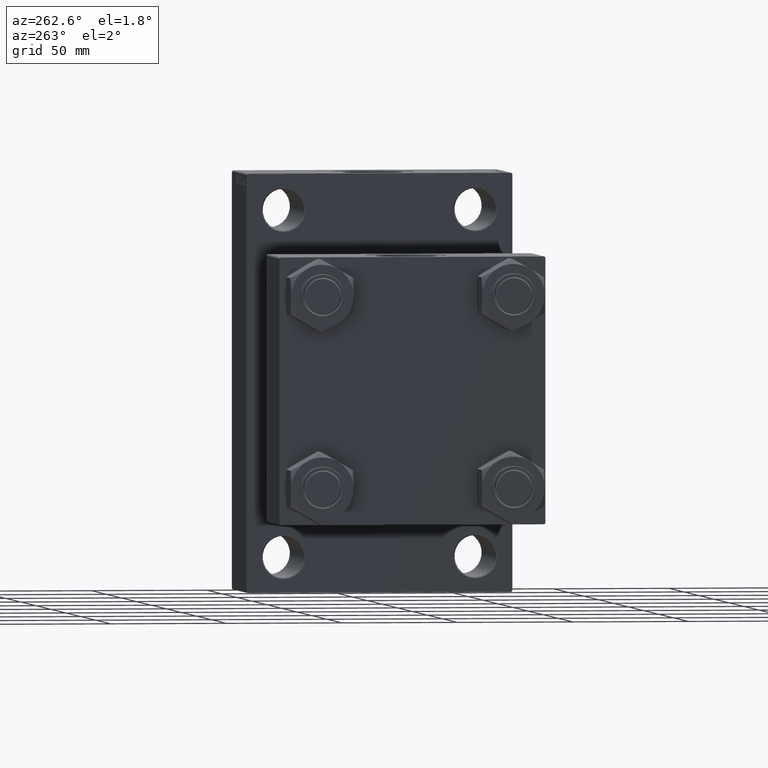
[diagram: clean part render]
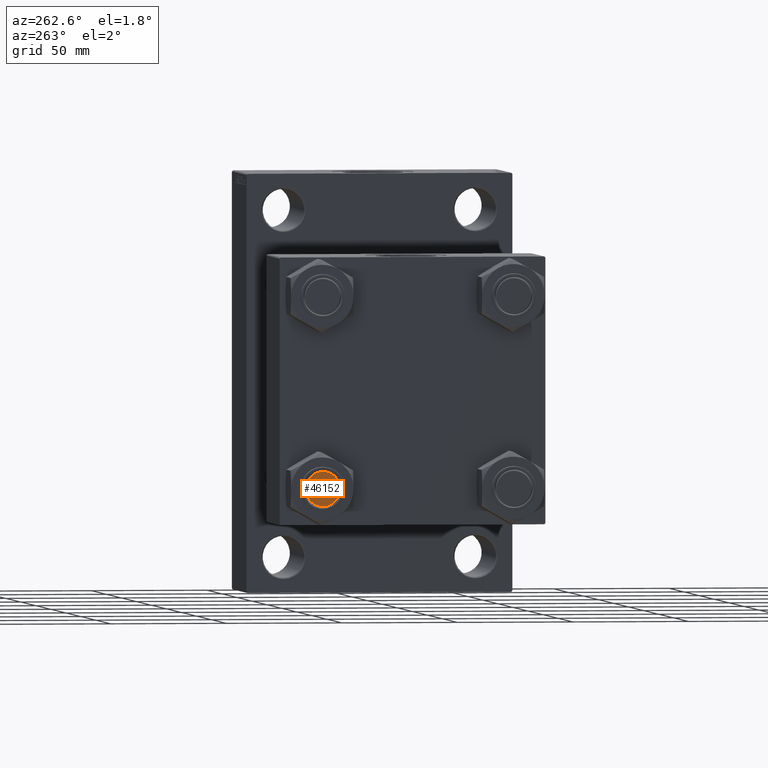
[diagram: same view with one face highlighted and labeled with its STEP entity id]
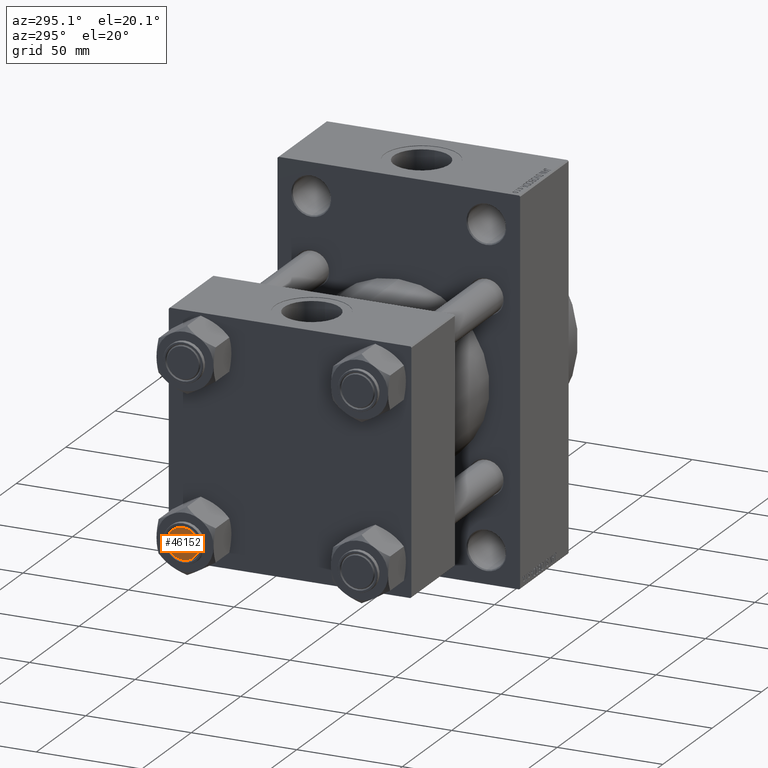
[diagram: same view with one face highlighted and labeled with its STEP entity id]
A machine part, auxiliary view. The second image highlights one B-rep face of the part: STEP entity #46152.
A second angle (auxiliary view) of the same face is appended — the face is thin or edge-on in the first view.
In plain terms, the highlighted planar face has unit normal (1, 0, 0).
Its self-contained STEP definition (entity closure, byte-faithful):
#528 = EDGE_CURVE ( 'NONE', #25853, #27355, #25229, .T. ) ;
#935 = ORIENTED_EDGE ( 'NONE', *, *, #528, .T. ) ;
#1458 = DIRECTION ( 'NONE',  ( 1.000000000000000000, 0.000000000000000000, 0.000000000000000000 ) ) ;
#7364 = DIRECTION ( 'NONE',  ( 1.000000000000000000, 0.000000000000000000, 0.000000000000000000 ) ) ;
#11456 = DIRECTION ( 'NONE',  ( -0.000000000000000000, -0.000000000000000000, -1.000000000000000000 ) ) ;
#12527 = ORIENTED_EDGE ( 'NONE', *, *, #21401, .T. ) ;
#12927 = CARTESIAN_POINT ( 'NONE',  ( 7.500000000000020428, 0.000000000000000000, 0.000000000000000000 ) ) ;
#14349 = CARTESIAN_POINT ( 'NONE',  ( 0.000000000000000000, 0.000000000000000000, 0.000000000000000000 ) ) ;
#16100 = DIRECTION ( 'NONE',  ( 1.000000000000000000, 0.000000000000000000, -0.000000000000000000 ) ) ;
#19518 = DIRECTION ( 'NONE',  ( -0.000000000000000000, -0.000000000000000000, -1.000000000000000000 ) ) ;
#19753 = CARTESIAN_POINT ( 'NONE',  ( 0.000000000000000000, 0.000000000000000000, 0.000000000000000000 ) ) ;
#21060 = AXIS2_PLACEMENT_3D ( 'NONE', #19753, #19518, #1458 ) ;
#21401 = EDGE_CURVE ( 'NONE', #27355, #25853, #44955, .T. ) ;
#23792 = FACE_OUTER_BOUND ( 'NONE', #23896, .T. ) ;
#23896 = EDGE_LOOP ( 'NONE', ( #12527, #935 ) ) ;
#25229 = CIRCLE ( 'NONE', #47534, 7.500000000000020428 ) ;
#25853 = VERTEX_POINT ( 'NONE', #39658 ) ;
#27355 = VERTEX_POINT ( 'NONE', #12927 ) ;
#27418 = DIRECTION ( 'NONE',  ( 0.000000000000000000, 0.000000000000000000, 1.000000000000000000 ) ) ;
#39576 = AXIS2_PLACEMENT_3D ( 'NONE', #44798, #27418, #16100 ) ;
#39658 = CARTESIAN_POINT ( 'NONE',  ( -7.500000000000020428, 9.491012693392001592E-16, 0.000000000000000000 ) ) ;
#44798 = CARTESIAN_POINT ( 'NONE',  ( 0.000000000000000000, 0.000000000000000000, 0.000000000000000000 ) ) ;
#44955 = CIRCLE ( 'NONE', #21060, 7.500000000000020428 ) ;
#45761 = PLANE ( 'NONE',  #39576 ) ;
#46152 = ADVANCED_FACE ( 'NONE', ( #23792 ), #45761, .F. ) ;
#47534 = AXIS2_PLACEMENT_3D ( 'NONE', #14349, #11456, #7364 ) ;